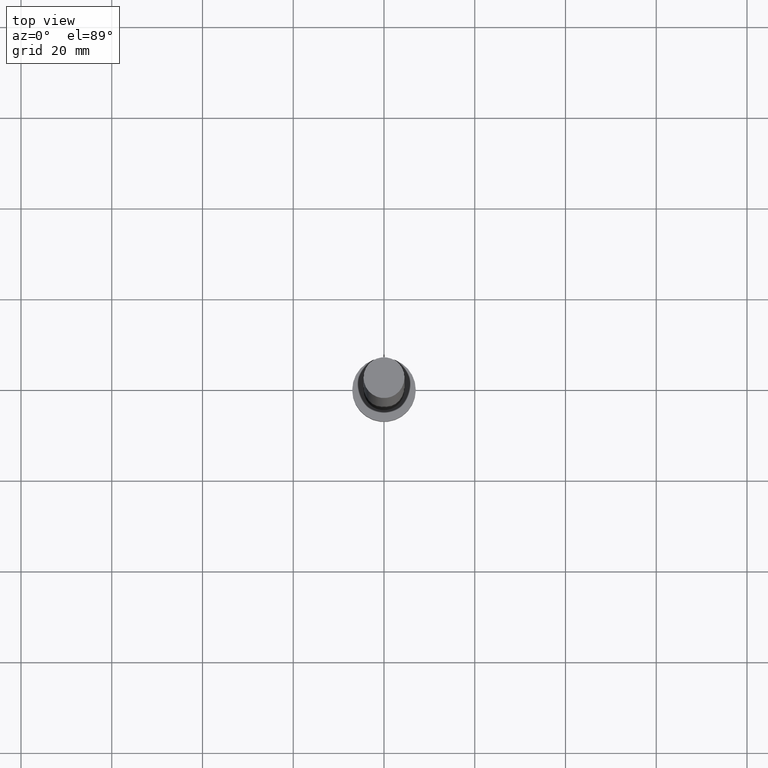
[diagram: clean part render]
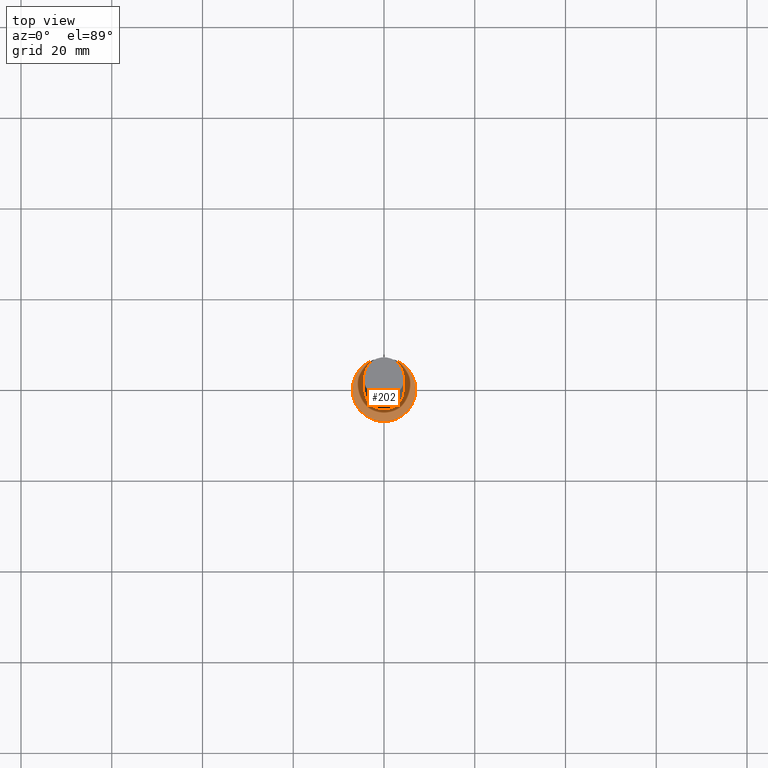
[diagram: same view with one face highlighted and labeled with its STEP entity id]
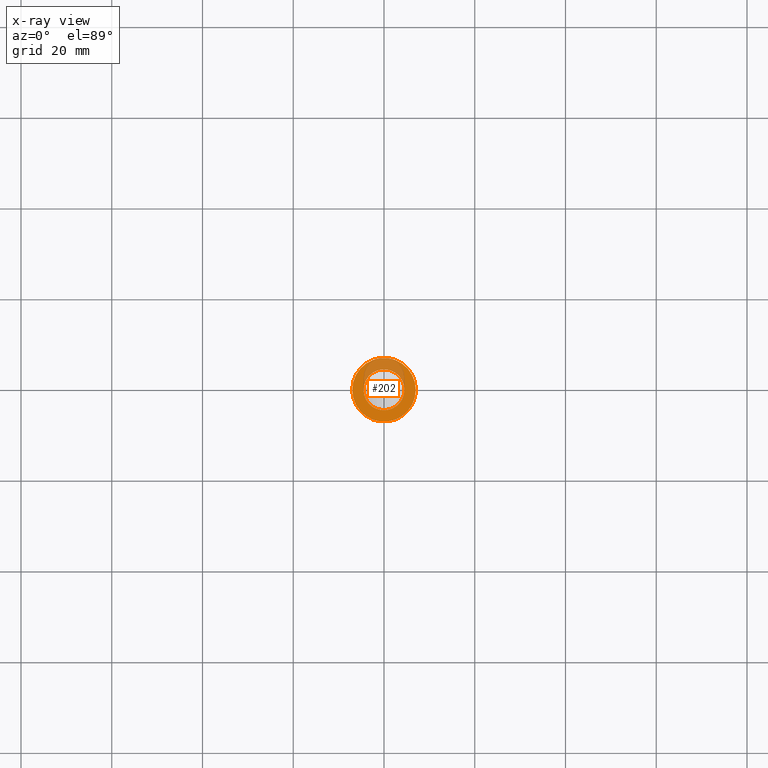
[diagram: x-ray of the same camera — body ghosted, the highlighted face saturated]
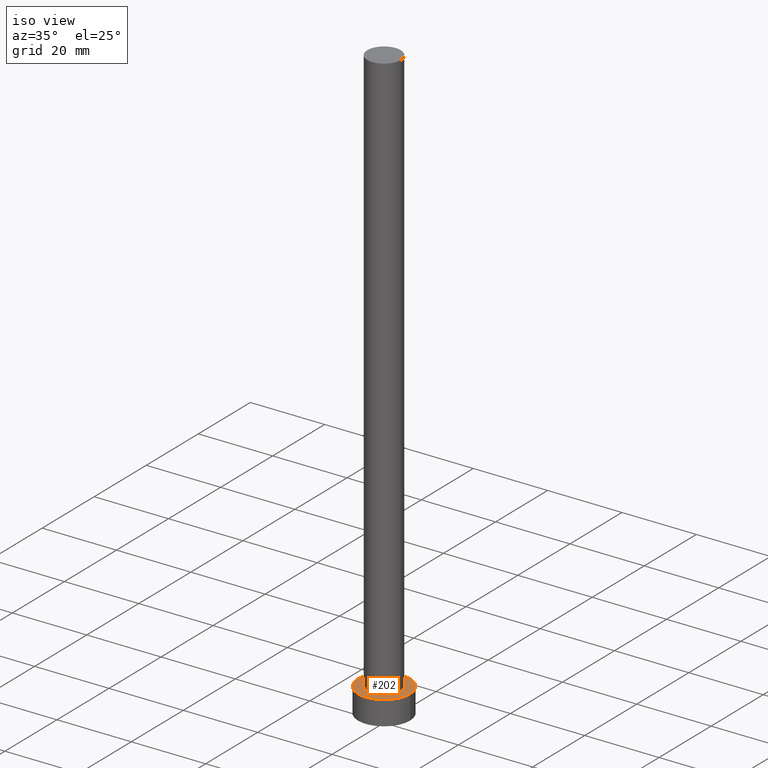
[diagram: same view with one face highlighted and labeled with its STEP entity id]
A machine part, top view. The second image highlights one B-rep face of the part: STEP entity #202.
The next image is the same camera in x-ray: the body ghosted, the highlighted face saturated — about 27% of this face is hidden behind the body in this view.
A second angle (iso view) of the same face is appended — the face is thin or edge-on in the first view.
In plain terms, the highlighted planar face has unit normal (0, 0, 1).
Its self-contained STEP definition (entity closure, byte-faithful):
#11 = DIRECTION ( 'NONE',  ( 0.000000000000000000, 0.000000000000000000, 1.000000000000000000 ) ) ;
#15 = DIRECTION ( 'NONE',  ( 0.000000000000000000, 0.000000000000000000, 1.000000000000000000 ) ) ;
#20 = EDGE_CURVE ( 'NONE', #251, #183, #107, .T. ) ;
#21 = DIRECTION ( 'NONE',  ( 0.000000000000000000, 0.000000000000000000, 1.000000000000000000 ) ) ;
#23 = VERTEX_POINT ( 'NONE', #167 ) ;
#24 = AXIS2_PLACEMENT_3D ( 'NONE', #61, #21, #36 ) ;
#25 = FACE_OUTER_BOUND ( 'NONE', #71, .T. ) ;
#34 = DIRECTION ( 'NONE',  ( 1.000000000000000000, 0.000000000000000000, 0.000000000000000000 ) ) ;
#36 = DIRECTION ( 'NONE',  ( 1.000000000000000000, 0.000000000000000000, 0.000000000000000000 ) ) ;
#42 = CARTESIAN_POINT ( 'NONE',  ( -4.500000000000000888, 0.000000000000000000, 6.500000000000000000 ) ) ;
#55 = CARTESIAN_POINT ( 'NONE',  ( 0.000000000000000000, 0.000000000000000000, 6.500000000000000000 ) ) ;
#61 = CARTESIAN_POINT ( 'NONE',  ( 0.000000000000000000, 0.000000000000000000, 6.500000000000000000 ) ) ;
#71 = EDGE_LOOP ( 'NONE', ( #182, #225 ) ) ;
#73 = AXIS2_PLACEMENT_3D ( 'NONE', #126, #88, #104 ) ;
#81 = EDGE_CURVE ( 'NONE', #23, #127, #206, .T. ) ;
#84 = PLANE ( 'NONE',  #73 ) ;
#85 = CIRCLE ( 'NONE', #24, 7.000000000000000000 ) ;
#88 = DIRECTION ( 'NONE',  ( 0.000000000000000000, 0.000000000000000000, 1.000000000000000000 ) ) ;
#104 = DIRECTION ( 'NONE',  ( 1.000000000000000000, 0.000000000000000000, -0.000000000000000000 ) ) ;
#107 = CIRCLE ( 'NONE', #234, 4.500000000000000888 ) ;
#115 = CARTESIAN_POINT ( 'NONE',  ( -7.000000000000000000, 0.000000000000000000, 6.500000000000000000 ) ) ;
#119 = EDGE_CURVE ( 'NONE', #127, #23, #85, .T. ) ;
#123 = FACE_BOUND ( 'NONE', #242, .T. ) ;
#126 = CARTESIAN_POINT ( 'NONE',  ( 0.000000000000000000, 0.000000000000000000, 6.500000000000000000 ) ) ;
#127 = VERTEX_POINT ( 'NONE', #115 ) ;
#134 = ORIENTED_EDGE ( 'NONE', *, *, #20, .F. ) ;
#147 = CARTESIAN_POINT ( 'NONE',  ( 0.000000000000000000, 0.000000000000000000, 6.500000000000000000 ) ) ;
#167 = CARTESIAN_POINT ( 'NONE',  ( 7.000000000000000000, 8.572527594031471218E-16, 6.500000000000000000 ) ) ;
#170 = DIRECTION ( 'NONE',  ( 1.000000000000000000, 0.000000000000000000, 0.000000000000000000 ) ) ;
#175 = DIRECTION ( 'NONE',  ( 1.000000000000000000, 0.000000000000000000, 0.000000000000000000 ) ) ;
#182 = ORIENTED_EDGE ( 'NONE', *, *, #119, .T. ) ;
#183 = VERTEX_POINT ( 'NONE', #42 ) ;
#185 = CIRCLE ( 'NONE', #213, 4.500000000000000888 ) ;
#195 = CARTESIAN_POINT ( 'NONE',  ( 4.500000000000000888, 5.510910596163089556E-16, 6.500000000000000000 ) ) ;
#198 = AXIS2_PLACEMENT_3D ( 'NONE', #227, #15, #34 ) ;
#202 = ADVANCED_FACE ( 'NONE', ( #123, #25 ), #84, .T. ) ;
#206 = CIRCLE ( 'NONE', #198, 7.000000000000000000 ) ;
#213 = AXIS2_PLACEMENT_3D ( 'NONE', #147, #215, #175 ) ;
#215 = DIRECTION ( 'NONE',  ( 0.000000000000000000, 0.000000000000000000, 1.000000000000000000 ) ) ;
#225 = ORIENTED_EDGE ( 'NONE', *, *, #81, .T. ) ;
#227 = CARTESIAN_POINT ( 'NONE',  ( 0.000000000000000000, 0.000000000000000000, 6.500000000000000000 ) ) ;
#232 = EDGE_CURVE ( 'NONE', #183, #251, #185, .T. ) ;
#234 = AXIS2_PLACEMENT_3D ( 'NONE', #55, #11, #170 ) ;
#242 = EDGE_LOOP ( 'NONE', ( #247, #134 ) ) ;
#247 = ORIENTED_EDGE ( 'NONE', *, *, #232, .F. ) ;
#251 = VERTEX_POINT ( 'NONE', #195 ) ;